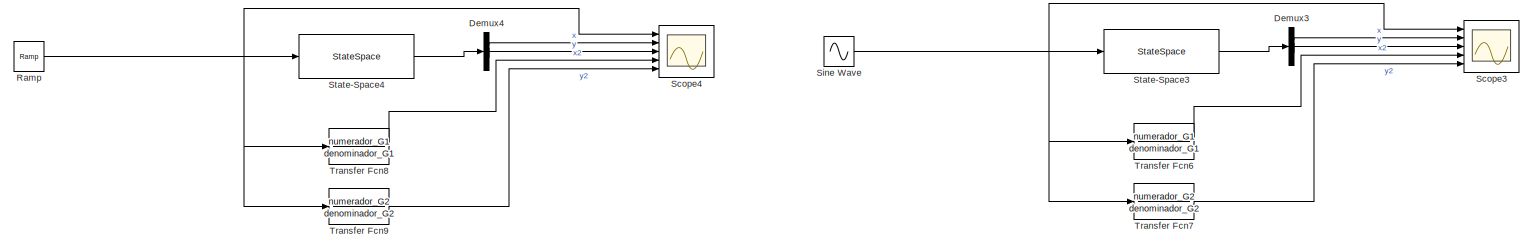
[diagram: root canvas - part 1/2, full width, top band]
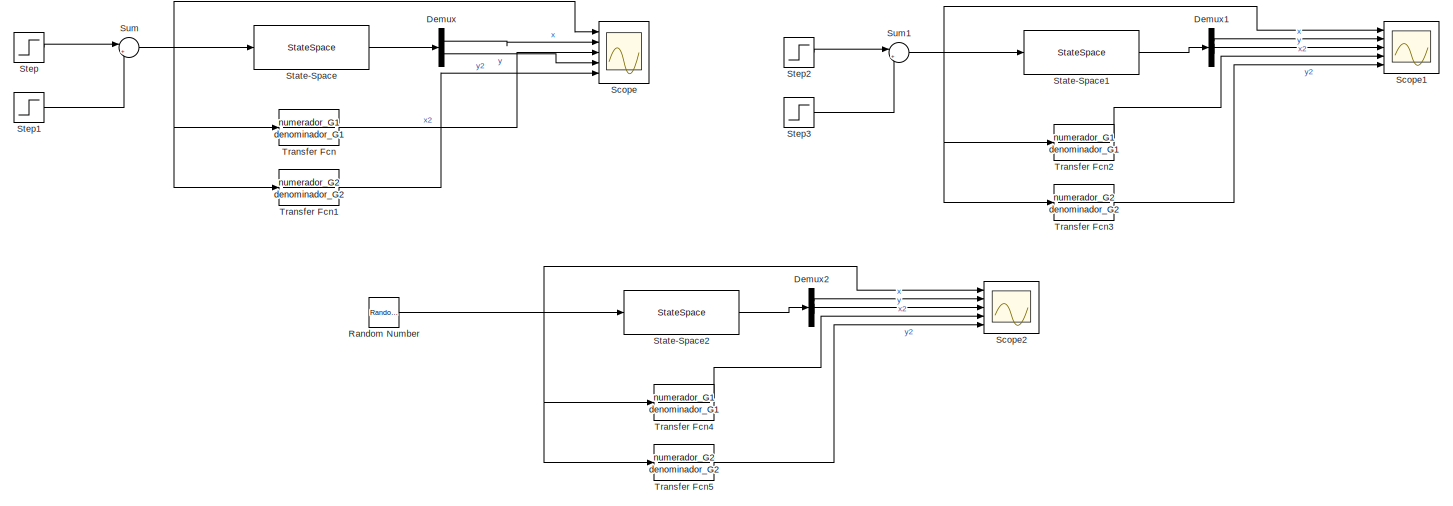
[diagram: root canvas - part 2/2, full width, bottom band]
MODEL slx_b390ec62c7cf
KIND model
CONFIG AbsTol = auto
CONFIG EnableMultiTasking = off
CONFIG FixedStep = auto
CONFIG MaxStep = auto
CONFIG MinStep = auto
CONFIG RelTol = 1e-3
CONFIG SampleTimeConstraint = Unconstrained
CONFIG SolverName = VariableStepAuto
CONFIG StartTime = 0.0
CONFIG StopTime = 10.0
BLOCK [Demux] Demux
  Outputs = 2
  Ports = [1, 2]
BLOCK [Demux] Demux1
  Outputs = 2
  Ports = [1, 2]
BLOCK [Demux] Demux2
  Outputs = 2
  Ports = [1, 2]
BLOCK [Demux] Demux3
  Outputs = 2
  Ports = [1, 2]
BLOCK [Demux] Demux4
  Outputs = 2
  Ports = [1, 2]
BLOCK [Reference] Ramp  REF=simulink/Sources/Ramp
  Ports = [0, 1]
  SourceBlock = simulink/Sources/Ramp
  SourceProductBaseCode = SL
  SourceType = Ramp
BLOCK [RandomNumber] Random Number
  SampleTime = 0.1
BLOCK [Scope] Scope
  Floating = off
  NumInputPorts = 5
  Ports = [5]
  ScopeSpecificationString = Simulink.scopes.TimeScopeBlockCfg('CurrentConfiguration', extmgr.ConfigurationSet(extmgr.Configuration('Core','General UI',true),extmgr.Configuration('Core','Source UI',true),extmgr.Configuration('Sources','WiredSimulink',true,'DataLoggingVariableName','ScopeData1'),extmgr.Configuration('Visuals','Time Domain',true,'SerializedDisplays',{struct('MinYLimReal','-2','MaxYLimReal','2','YLabelReal','','...<+2306ch>
BLOCK [Scope] Scope1
  Floating = off
  NumInputPorts = 5
  Ports = [5]
  ScopeSpecificationString = Simulink.scopes.TimeScopeBlockCfg('CurrentConfiguration', extmgr.ConfigurationSet(extmgr.Configuration('Core','General UI',true),extmgr.Configuration('Core','Source UI',true),extmgr.Configuration('Sources','WiredSimulink',true,'DataLoggingVariableName','ScopeData2'),extmgr.Configuration('Visuals','Time Domain',true,'SerializedDisplays',{struct('MinYLimReal','-2','MaxYLimReal','2','YLabelReal','','...<+2141ch>
BLOCK [Scope] Scope2
  Floating = off
  NumInputPorts = 5
  Ports = [5]
  ScopeSpecificationString = Simulink.scopes.TimeScopeBlockCfg('CurrentConfiguration', extmgr.ConfigurationSet(extmgr.Configuration('Core','General UI',true),extmgr.Configuration('Core','Source UI',true),extmgr.Configuration('Sources','WiredSimulink',true,'DataLoggingVariableName','ScopeData3'),extmgr.Configuration('Visuals','Time Domain',true,'SerializedDisplays',{struct('MinYLimReal','-5','MaxYLimReal','5','YLabelReal','','...<+2151ch>
BLOCK [Scope] Scope3
  Floating = off
  NumInputPorts = 5
  Ports = [5]
  ScopeSpecificationString = Simulink.scopes.TimeScopeBlockCfg('CurrentConfiguration', extmgr.ConfigurationSet(extmgr.Configuration('Core','General UI',true),extmgr.Configuration('Core','Source UI',true),extmgr.Configuration('Sources','WiredSimulink',true,'DataLoggingVariableName','ScopeData4'),extmgr.Configuration('Visuals','Time Domain',true,'SerializedDisplays',{struct('MinYLimReal','-2','MaxYLimReal','2','YLabelReal','','...<+2147ch>
BLOCK [Scope] Scope4
  Floating = off
  NumInputPorts = 5
  Ports = [5]
  ScopeSpecificationString = Simulink.scopes.TimeScopeBlockCfg('CurrentConfiguration', extmgr.ConfigurationSet(extmgr.Configuration('Core','General UI',true),extmgr.Configuration('Core','Source UI',true),extmgr.Configuration('Sources','WiredSimulink',true),extmgr.Configuration('Visuals','Time Domain',true,'SerializedDisplays',{struct('MinYLimReal','-10','MaxYLimReal','10','YLabelReal','','MinYLimMag','0.00000','MaxYLimMag','2...<+2107ch>
BLOCK [Sin] Sine Wave
  Ports = [0, 1]
  SampleTime = 0
BLOCK [StateSpace] State-Space
  A = A
  B = B
  C = C
  D = D
  InitialCondition = 0
  Ports = [1, 1]
BLOCK [StateSpace] State-Space1
  A = A
  B = B
  C = C
  D = D
  InitialCondition = 0
  Ports = [1, 1]
BLOCK [StateSpace] State-Space2
  A = A
  B = B
  C = C
  D = D
  InitialCondition = 0
  Ports = [1, 1]
BLOCK [StateSpace] State-Space3
  A = A
  B = B
  C = C
  D = D
  InitialCondition = 0
  Ports = [1, 1]
BLOCK [StateSpace] State-Space4
  A = A
  B = B
  C = C
  D = D
  InitialCondition = 0
  Ports = [1, 1]
BLOCK [Step] Step
  SampleTime = 0
  Time = 3
BLOCK [Step] Step1
  After = -1
  SampleTime = 0
  Time = 4
BLOCK [Step] Step2
  After = -1
  SampleTime = 0
  Time = 3
BLOCK [Step] Step3
  SampleTime = 0
  Time = 4
BLOCK [Sum] Sum
  Inputs = |++
  Ports = [2, 1]
BLOCK [Sum] Sum1
  Inputs = |++
  Ports = [2, 1]
BLOCK [TransferFcn] Transfer Fcn
  Denominator = denominador_G1
  Numerator = numerador_G1
BLOCK [TransferFcn] Transfer Fcn1
  Denominator = denominador_G2
  Numerator = numerador_G2
BLOCK [TransferFcn] Transfer Fcn2
  Denominator = denominador_G1
  Numerator = numerador_G1
BLOCK [TransferFcn] Transfer Fcn3
  Denominator = denominador_G2
  Numerator = numerador_G2
BLOCK [TransferFcn] Transfer Fcn4
  Denominator = denominador_G1
  Numerator = numerador_G1
BLOCK [TransferFcn] Transfer Fcn5
  Denominator = denominador_G2
  Numerator = numerador_G2
BLOCK [TransferFcn] Transfer Fcn6
  Denominator = denominador_G1
  Numerator = numerador_G1
BLOCK [TransferFcn] Transfer Fcn7
  Denominator = denominador_G2
  Numerator = numerador_G2
BLOCK [TransferFcn] Transfer Fcn8
  Denominator = denominador_G1
  Numerator = numerador_G1
BLOCK [TransferFcn] Transfer Fcn9
  Denominator = denominador_G2
  Numerator = numerador_G2
LINE Demux1:1 -> Scope1:2
LINE Demux1:2 -> Scope1:3
LINE Demux2:1 -> Scope2:2
LINE Demux2:2 -> Scope2:3
LINE Demux3:1 -> Scope3:2
LINE Demux3:2 -> Scope3:3
LINE Demux4:1 -> Scope4:2
LINE Demux4:2 -> Scope4:3
LINE Demux:1 -> Scope:2
LINE Demux:2 -> Scope:4
NET Ramp:1 -> Scope4:1, State-Space4:1, Transfer Fcn8:1, Transfer Fcn9:1
NET Random Number:1 -> Scope2:1, State-Space2:1, Transfer Fcn4:1, Transfer Fcn5:1
NET Sine Wave:1 -> Scope3:1, State-Space3:1, Transfer Fcn6:1, Transfer Fcn7:1
LINE State-Space1:1 -> Demux1:1
LINE State-Space2:1 -> Demux2:1
LINE State-Space3:1 -> Demux3:1
LINE State-Space4:1 -> Demux4:1
LINE State-Space:1 -> Demux:1
LINE Step1:1 -> Sum:2
LINE Step2:1 -> Sum1:1
LINE Step3:1 -> Sum1:2
LINE Step:1 -> Sum:1
NET Sum1:1 -> Scope1:1, State-Space1:1, Transfer Fcn2:1, Transfer Fcn3:1
NET Sum:1 -> Scope:1, State-Space:1, Transfer Fcn1:1, Transfer Fcn:1
LINE Transfer Fcn1:1 -> Scope:5
LINE Transfer Fcn2:1 -> Scope1:4
LINE Transfer Fcn3:1 -> Scope1:5
LINE Transfer Fcn4:1 -> Scope2:4
LINE Transfer Fcn5:1 -> Scope2:5
LINE Transfer Fcn6:1 -> Scope3:4
LINE Transfer Fcn7:1 -> Scope3:5
LINE Transfer Fcn8:1 -> Scope4:4
LINE Transfer Fcn9:1 -> Scope4:5
LINE Transfer Fcn:1 -> Scope:3
note: NET lines group one-source signal fan-out (src -> all destinations, sorted); 1:1 wires keep LINE
